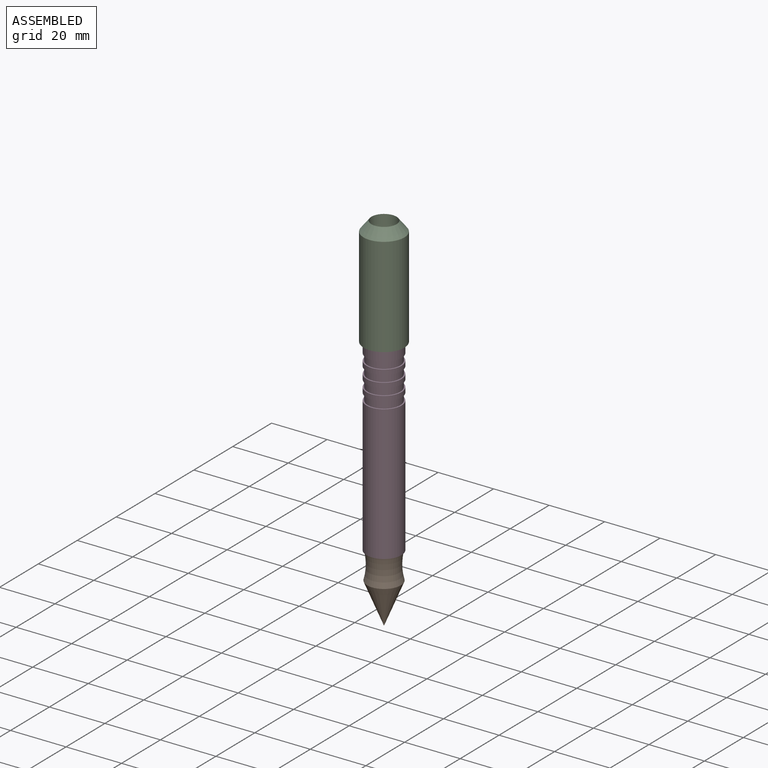
[diagram: assembled view]
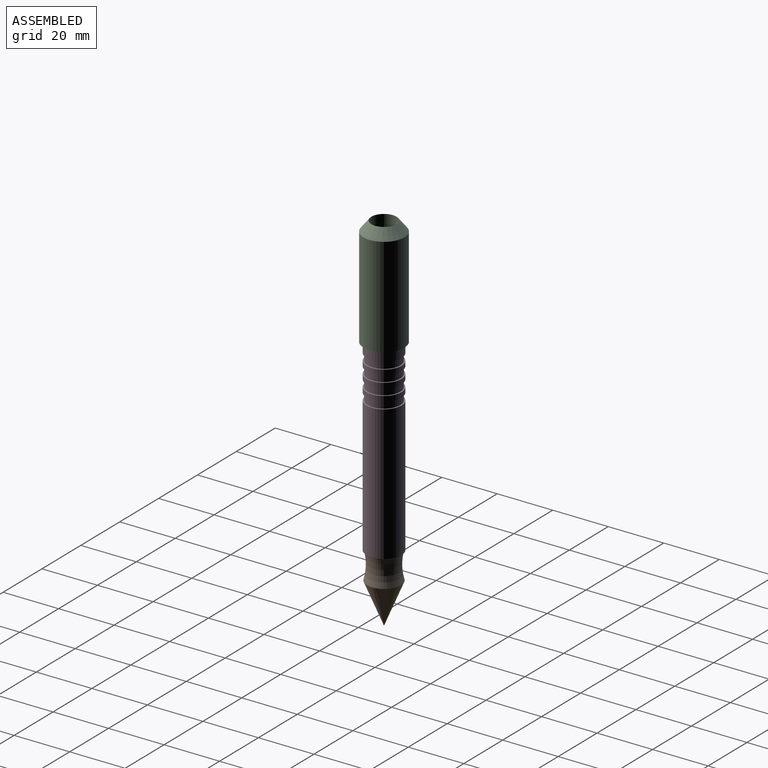
[diagram: assembled view, second angle]
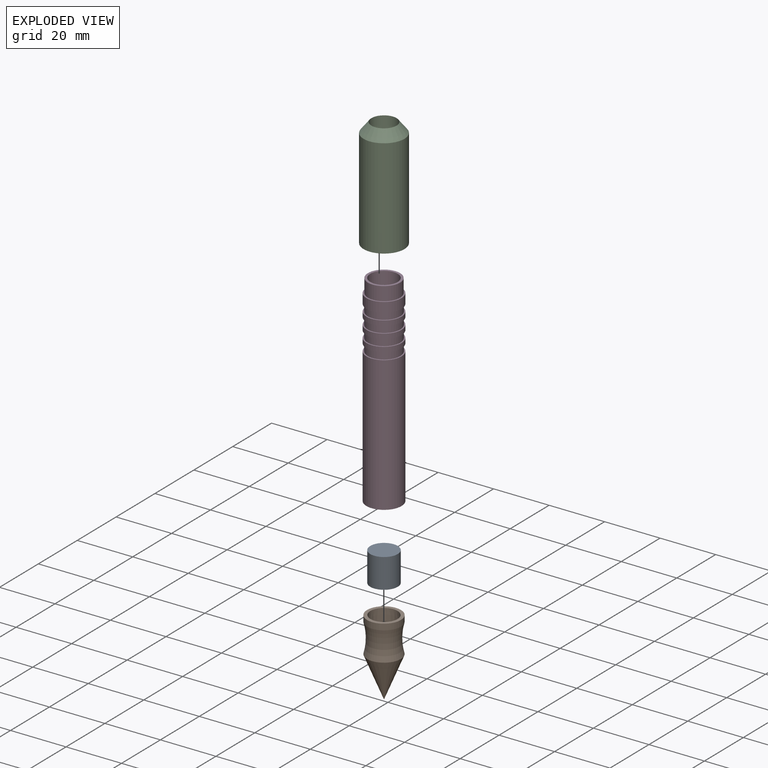
[diagram: exploded view]
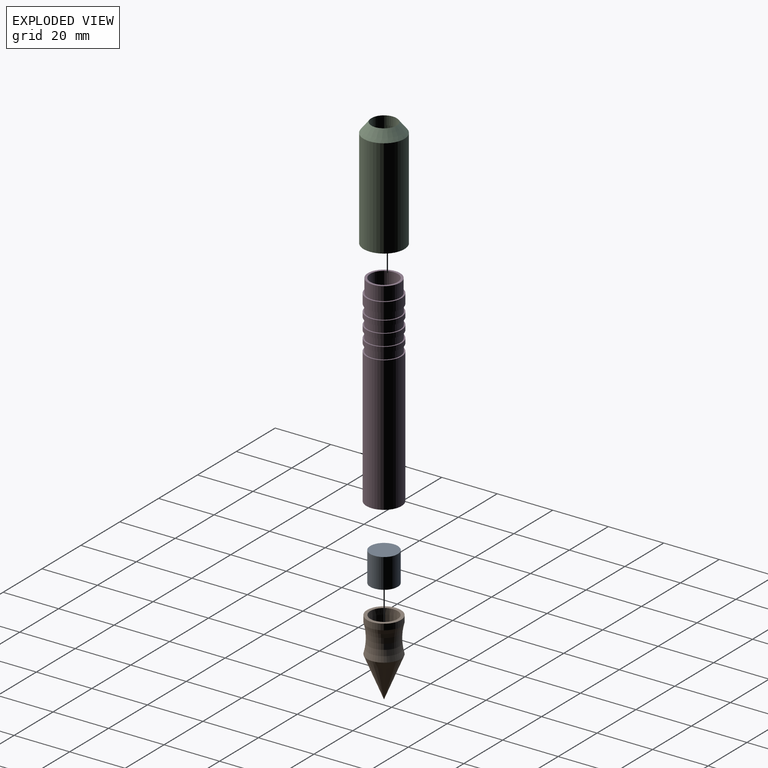
[diagram: exploded view, second angle]
ASSEMBLY  parts=4 mates=3
PART A: 3 faces, bbox 9.9x9.9x10.7 mm
  f0: plane 9.91x9.91mm, normal (0,0,1), area 77.1mm2, adj f1
  f1: cylinder r=4.95mm len=10.67mm, axis (0,0,1), area 332mm2, adj f0,f2
  f2: plane 9.91x9.91mm, normal (0,0,-1), area 77.1mm2, adj f1
PART B: 6 faces, bbox 24x24x34 mm
  f0: cone r=0mm half-angle=22.4deg, axis (0,0,1), area 306.1mm2, adj f5
  f1: plane 9.91x9.91mm, normal (0,0,1), area 77.1mm2, adj f2
  f2: cone r=4.95mm half-angle=0.3deg, axis (0,0,-1), area 330.3mm2, adj f1,f3
  f3: plane 12.19x12.19mm, normal (0,0,1), area 41.3mm2, adj f2,f4
  f4: cylinder r=6.1mm len=12.19mm, axis (0,0,-1), area 83.1mm2, adj f3,f5
  f5: torus R=25.05mm, axis (0,0,-1), area 376.4mm2, adj f0,f4
PART C: 7 faces, bbox 14.7x14.7x39.5 mm
  f0: cone r=3.68mm half-angle=38.4deg, axis (0,0,-1), area 169.9mm2, adj f3,f5
  f1: cylinder r=5.84mm len=36.25mm, axis (0,0,-1), area 1316.2mm2, adj f2,f4,f6
  f2: plane 14.73x14.73mm, normal (0,0,-1), area 63.2mm2, adj f1,f3
  f3: cylinder r=7.37mm len=35.91mm, axis (0,0,-1), area 1647.8mm2, adj f0,f2,f6
  f4: plane 11.68x11.68mm, normal (0,0,-1), area 42.3mm2, adj f1,f5
  f5: cylinder r=4.55mm len=9.09mm, axis (0,0,-1), area 92mm2, adj f0,f4
  f6: cylinder r=2.13mm len=4.25mm, axis (1,0,0), area 20.9mm2, adj f1,f3
PART D: 22 faces, bbox 12.6x12.6x72.6 mm
  f0: cylinder r=6.32mm len=48.74mm, axis (0,0,1), area 1934.9mm2, adj f1,f21
  f1: plane 12.64x12.64mm, normal (0,0,-1), area 48.3mm2, adj f0,f2
  f2: cylinder r=4.95mm len=72.62mm, axis (0,0,1), area 2259.8mm2, adj f1,f3
  f3: plane 11.61x11.61mm, normal (0,0,1), area 28.7mm2, adj f2,f4
  f4: cylinder r=5.8mm len=11.61mm, axis (0,0,1), area 179.1mm2, adj f3,f5
  f5: plane 12.64x12.64mm, normal (0,0,1), area 19.6mm2, adj f4,f6
  f6: cylinder r=6.32mm len=12.64mm, axis (0,0,1), area 138.7mm2, adj f5,f7
  f7: plane 12.64x12.64mm, normal (0,0,-1), area 17.1mm2, adj f6,f8
  f8: cylinder r=5.87mm len=11.74mm, axis (0,0,1), area 93.7mm2, adj f7,f9
  f9: plane 12.64x12.64mm, normal (0,0,1), area 17.1mm2, adj f8,f10
  f10: cylinder r=6.32mm len=12.64mm, axis (0,0,1), area 69.2mm2, adj f9,f11
  f11: plane 12.64x12.64mm, normal (0,0,-1), area 17.1mm2, adj f10,f12
  f12: cylinder r=5.87mm len=11.74mm, axis (0,0,1), area 93.7mm2, adj f11,f13
  f13: plane 12.64x12.64mm, normal (0,0,1), area 17.1mm2, adj f12,f14
  f14: cylinder r=6.32mm len=12.64mm, axis (0,0,1), area 69.6mm2, adj f13,f15
  f15: plane 12.64x12.64mm, normal (0,0,-1), area 17.1mm2, adj f14,f16
  f16: cylinder r=5.87mm len=11.74mm, axis (0,0,1), area 93.7mm2, adj f15,f17
  f17: plane 12.64x12.64mm, normal (0,0,1), area 17.1mm2, adj f16,f18
  f18: cylinder r=6.32mm len=12.64mm, axis (0,0,1), area 69.6mm2, adj f17,f19
  f19: plane 12.64x12.64mm, normal (0,0,-1), area 17.1mm2, adj f18,f20
  f20: cylinder r=5.87mm len=11.74mm, axis (0,0,1), area 96mm2, adj f19,f21
  f21: plane 12.64x12.64mm, normal (0,0,1), area 17.1mm2, adj f0,f20
PLACE A rot(axis=(1,0,0),180deg) t=(-95.66,-62.52,43.1)mm
PLACE B rot(axis=(1,0,0),0deg) t=(-159.68,-62.52,8.03)mm
PLACE C t=(-159.68,-62.52,78.37)mm
PLACE D t=(-95.66,-62.52,-32.72)mm
MATE slider C.f0 <-> D.f0  axis (0,0,-1) through (-159.68,-62.52,78.37)mm
MATE slider B.f2 <-> A.f1  axis (0,0,1) through (-159.68,-62.52,2.69)mm
MATE fastened A.f1 <-> D.f0  axis (0,0,1) through (-159.68,-62.52,10.52)mm
